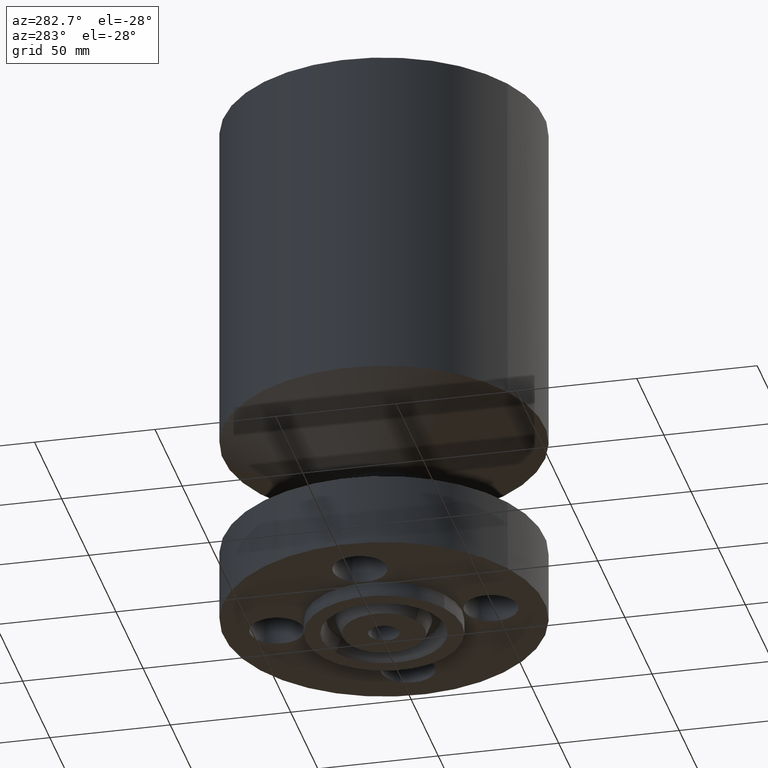
[diagram: clean part render]
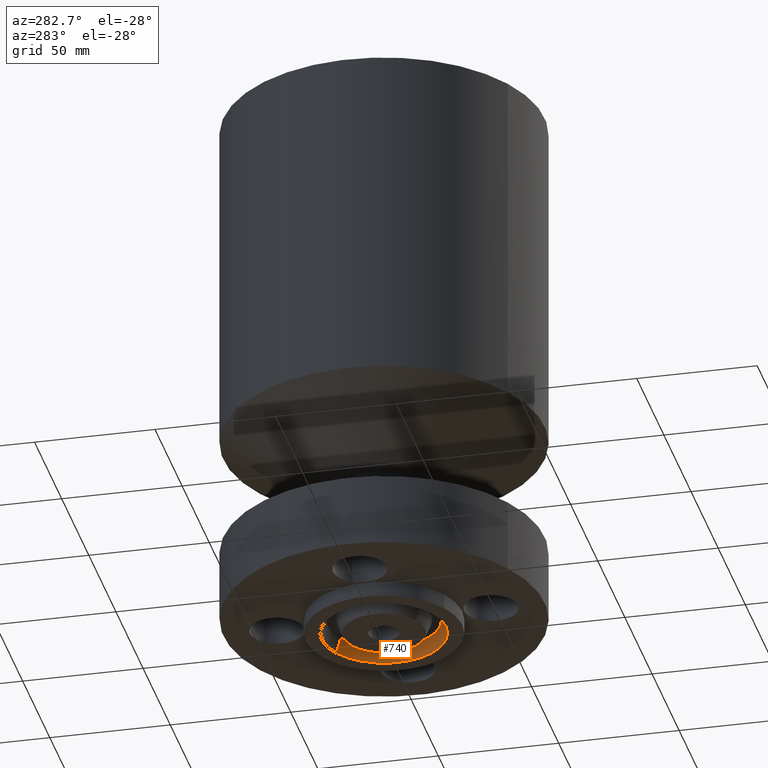
[diagram: same view with one face highlighted and labeled with its STEP entity id]
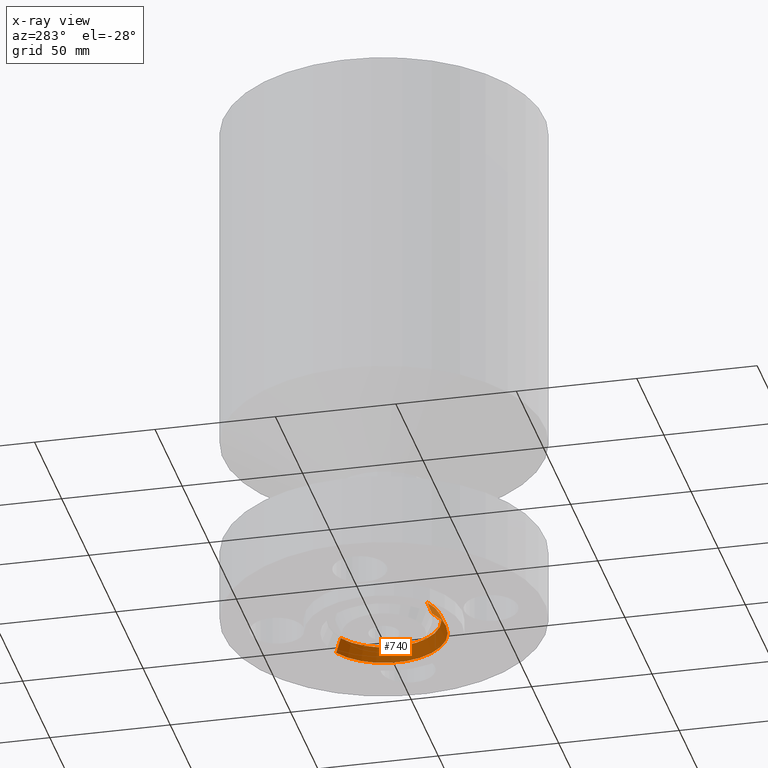
[diagram: x-ray of the same camera — body ghosted, the highlighted face saturated]
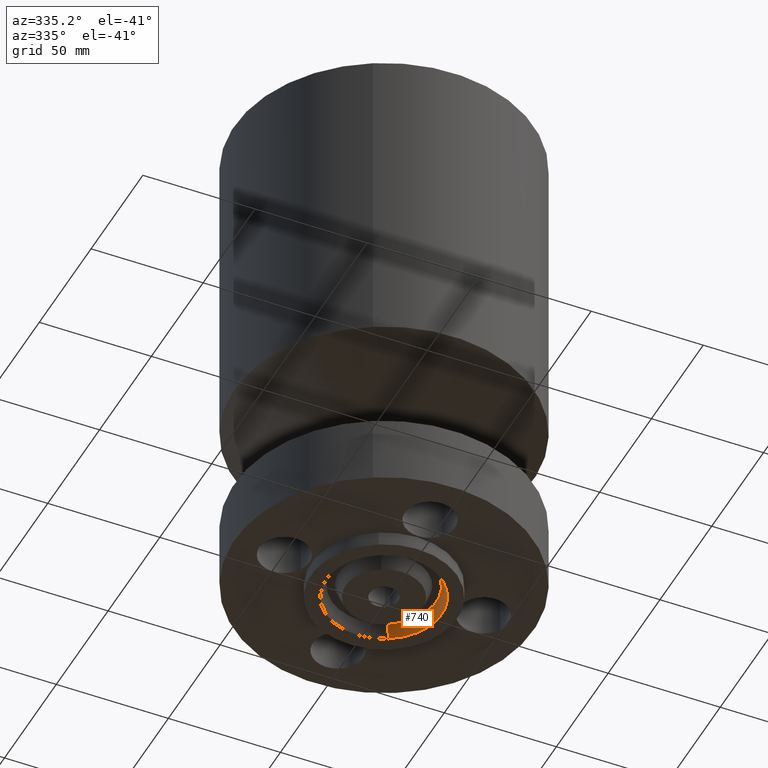
[diagram: same view with one face highlighted and labeled with its STEP entity id]
A machine part, auxiliary view. The second image highlights one B-rep face of the part: STEP entity #740.
The next image is the same camera in x-ray: the body ghosted, the highlighted face saturated — about 0% of this face is hidden behind the body in this view.
A second angle (auxiliary view) of the same face is appended — the face is thin or edge-on in the first view.
In plain terms, the highlighted conical surface has half-angle 23 deg.
Its self-contained STEP definition (entity closure, byte-faithful):
#688=AXIS2_PLACEMENT_3D('Circle Axis2P3D',#686,#687,$) ;
#701=AXIS2_PLACEMENT_3D('Cone Axis2P3D',#698,#699,#700) ;
#731=AXIS2_PLACEMENT_3D('Circle Axis2P3D',#729,#730,$) ;
#664=CARTESIAN_POINT('Vertex',(-0.440063979875,-0.80553171193,-0.0188873350169)) ;
#671=CARTESIAN_POINT('Vertex',(0.440063979875,0.80553171193,-0.0188873350169)) ;
#686=CARTESIAN_POINT('Axis2P3D Location',(0.,0.,-0.0188873350169)) ;
#698=CARTESIAN_POINT('Axis2P3D Location',(0.,0.,-0.0188873350169)) ;
#703=CARTESIAN_POINT('Line Origine',(-0.46358016355,-0.848577797407,-0.134443667509)) ;
#707=CARTESIAN_POINT('Vertex',(-0.487096347224,-0.891623882884,-0.250000000001)) ;
#714=CARTESIAN_POINT('Vertex',(0.487096347224,0.891623882884,-0.250000000001)) ;
#717=CARTESIAN_POINT('Line Origine',(0.46358016355,0.848577797407,-0.134443667509)) ;
#729=CARTESIAN_POINT('Axis2P3D Location',(0.,0.,-0.250000000001)) ;
#687=DIRECTION('Axis2P3D Direction',(0.,0.,-0.0393700787402)) ;
#699=DIRECTION('Axis2P3D Direction',(0.,0.,-0.0393700787402)) ;
#700=DIRECTION('Axis2P3D XDirection',(0.0188750212049,0.0345504945626,0.)) ;
#704=DIRECTION('Vector Direction',(-0.00737505833565,-0.0134999537303,-0.0362403485611)) ;
#718=DIRECTION('Vector Direction',(0.00737505833565,0.0134999537303,-0.0362403485611)) ;
#730=DIRECTION('Axis2P3D Direction',(0.,0.,-0.0393700787402)) ;
#705=VECTOR('Line Direction',#704,0.0393700787402) ;
#719=VECTOR('Line Direction',#718,0.0393700787402) ;
#735=ORIENTED_EDGE('',*,*,#690,.F.) ;
#736=ORIENTED_EDGE('',*,*,#721,.T.) ;
#737=ORIENTED_EDGE('',*,*,#733,.T.) ;
#738=ORIENTED_EDGE('',*,*,#709,.F.) ;
#740=ADVANCED_FACE('PartBody',(#739),#702,.F.) ;
#689=CIRCLE('generated circle',#688,0.917898494011) ;
#732=CIRCLE('generated circle',#731,1.016) ;
#702=CONICAL_SURFACE('Cone',#701,0.917898494011,0.401425727959) ;
#690=EDGE_CURVE('',#672,#665,#689,.T.) ;
#709=EDGE_CURVE('',#665,#708,#706,.T.) ;
#721=EDGE_CURVE('',#672,#715,#720,.T.) ;
#733=EDGE_CURVE('',#715,#708,#732,.T.) ;
#734=EDGE_LOOP('',(#735,#736,#737,#738)) ;
#739=FACE_OUTER_BOUND('',#734,.T.) ;
#706=LINE('Line',#703,#705) ;
#720=LINE('Line',#717,#719) ;
#665=VERTEX_POINT('',#664) ;
#672=VERTEX_POINT('',#671) ;
#708=VERTEX_POINT('',#707) ;
#715=VERTEX_POINT('',#714) ;